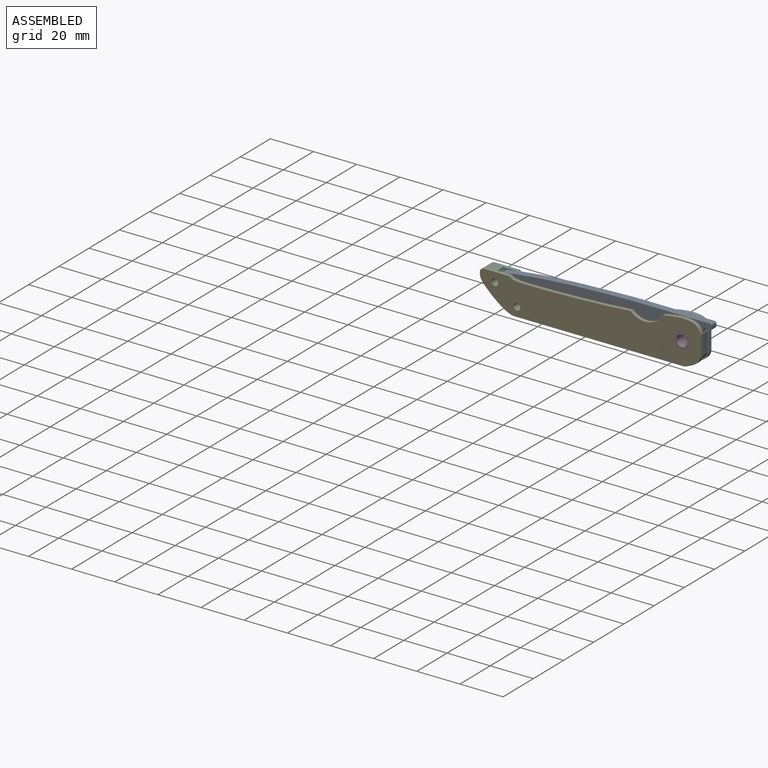
[diagram: assembled view]
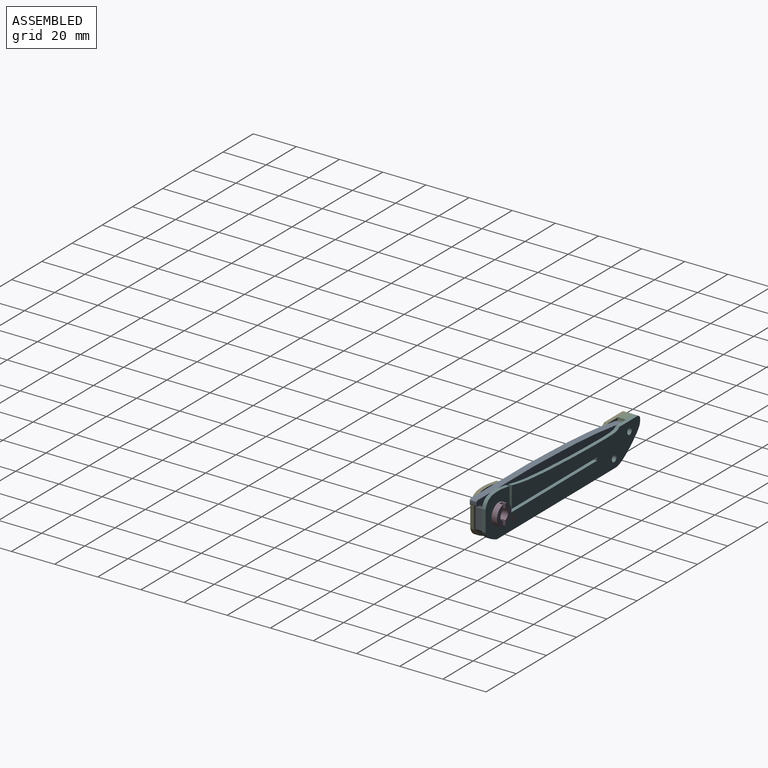
[diagram: assembled view, second angle]
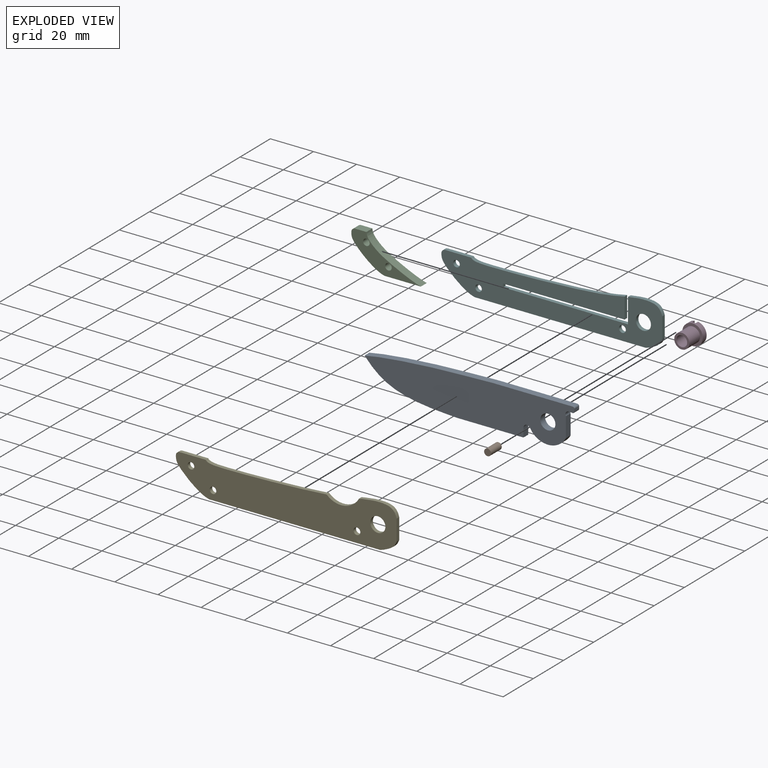
[diagram: exploded view]
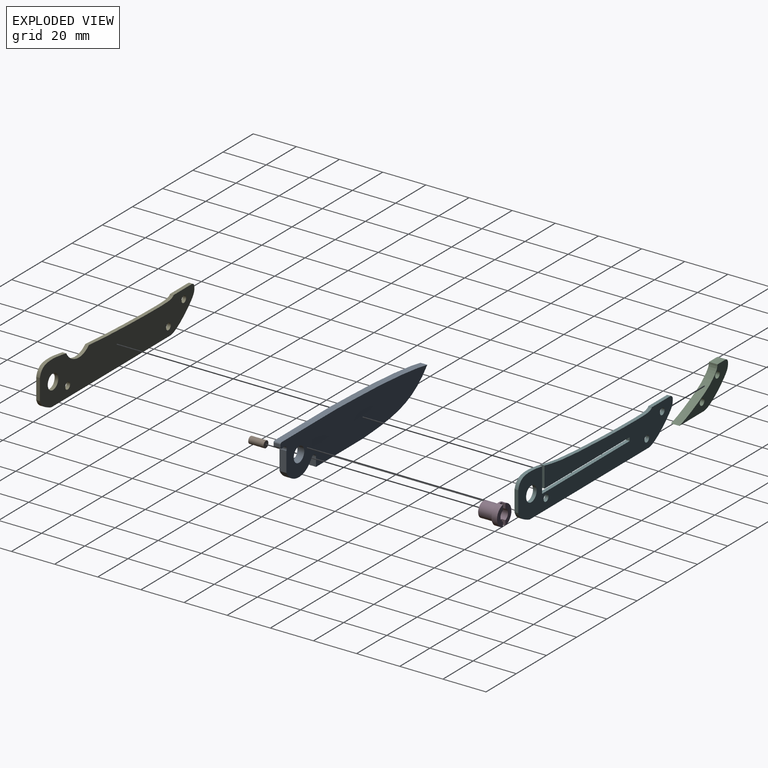
[diagram: exploded view, second angle]
ASSEMBLY  parts=6 mates=6
PART A: 16 faces, bbox 97.2x3.2x19.1 mm
  f0: cylinder r=1.59mm len=3.18mm, axis (0,1,0), area 13.5mm2, adj f1,f12,f14,f15
  f1: cylinder r=9.53mm len=16.65mm, axis (0,1,0), area 64.3mm2, adj f0,f2,f14,f15
  f2: plane 9.25x3.18mm, normal (1,0,0), area 29.4mm2, adj f1,f3,f14,f15
  f3: cylinder r=1.59mm len=3.18mm, axis (0,1,0), area 11mm2, adj f2,f4,f14,f15
  f4: plane 3.18x1.49mm, normal (-0.11,0,-0.99), area 4.8mm2, adj f3,f5,f14,f15
  f5: cylinder r=0.8mm len=3.18mm, axis (0,1,0), area 4.3mm2, adj f4,f6,f14,f15
  f6: plane 3.18x1.12mm, normal (1,0,0), area 3.6mm2, adj f5,f7,f14,f15
  f7: cylinder r=0.8mm len=3.18mm, axis (0,1,0), area 4mm2, adj f6,f8,f14,f15
  f8: plane 36.97x3.18mm, normal (0,0,1), area 117.4mm2, adj f7,f9,f14,f15
  f9: extruded ~59.44x4.41mm, area 189.4mm2, adj f8,f10,f14,f15
  f10: extruded ~42.92x14.64mm, area 149.1mm2, adj f9,f11,f14,f15
  f11: plane 30.73x3.18mm, normal (0,0,-1), area 97.6mm2, adj f10,f12,f14,f15
  f12: plane 4.07x3.18mm, normal (1,0,0), area 12.9mm2, adj f0,f11,f14,f15
  f13: cylinder r=3.49mm len=6.99mm, axis (0,1,0), area 69.7mm2, adj f14,f15
  f14: plane 97.21x19.05mm, normal (0,-1,0), area 1458.5mm2, adj f0,f1,f2,f3,f4,f5,f6,f7
  f15: plane 97.21x19.05mm, normal (0,1,0), area 1458.5mm2, adj f0,f1,f2,f3,f4,f5,f6,f7
PART B: 3 faces, bbox 3.2x7.1x3.2 mm
  f0: cylinder r=1.59mm len=7.11mm, axis (0,1,0), area 70.9mm2, adj f1,f2
  f1: plane 3.18x3.18mm, normal (0,-1,0), area 7.9mm2, adj f0
  f2: plane 3.18x3.18mm, normal (0,1,0), area 7.9mm2, adj f0
PART C: 9 faces, bbox 32.3x3.9x16.1 mm
  f0: plane 16.72x3.94mm, normal (0,0,-1), area 65.8mm2, adj f1,f6,f7,f8
  f1: extruded ~25.26x16.13mm, area 122mm2, adj f0,f2,f7,f8
  f2: plane 5.17x3.94mm, normal (0,0,1), area 20.4mm2, adj f1,f3,f7,f8
  f3: cylinder r=1.81mm len=3.94mm, axis (0,1,0), area 10.9mm2, adj f2,f6,f7,f8
  f4: cylinder r=1.52mm len=3.94mm, axis (0,1,0), area 37.7mm2, adj f7,f8
  f5: cylinder r=1.52mm len=3.94mm, axis (0,1,0), area 37.7mm2, adj f7,f8
  f6: extruded ~15.53x14.39mm, area 87.4mm2, adj f0,f3,f7,f8
  f7: plane 32.32x16.13mm, normal (0,-1,0), area 167.7mm2, adj f0,f1,f2,f3,f4,f5,f6
  f8: plane 32.32x16.13mm, normal (0,1,0), area 167.7mm2, adj f0,f1,f2,f3,f4,f5,f6
PART D: 13 faces, bbox 9.5x9.7x9.5 mm
  f0: cylinder r=2.5mm len=9.65mm, axis (0,1,0), area 146.3mm2, adj f1,f3,f4,f7,f8,f9,f10,f11
  f1: plane 9.39x3.98mm, normal (0,1,0), area 22.2mm2, adj f0,f5,f8,f11
  f2: cylinder r=3.49mm len=7.11mm, axis (0,1,0), area 156.1mm2, adj f3,f6
  f3: plane 6.99x6.99mm, normal (0,-1,0), area 18.7mm2, adj f0,f2
  f4: plane 9.39x3.98mm, normal (0,1,0), area 22.2mm2, adj f0,f5,f7,f10
  f5: cylinder r=4.76mm len=9.53mm, axis (0,1,0), area 70.6mm2, adj f1,f4,f6,f7,f8,f9,f10,f11
  f6: plane 9.53x9.53mm, normal (0,-1,0), area 32.9mm2, adj f2,f5
  f7: plane 2.32x1.7mm, normal (-1,0,0), area 4mm2, adj f0,f4,f5,f9
  f8: plane 2.32x1.7mm, normal (1,0,0), area 4mm2, adj f0,f1,f5,f9
  f9: plane 2.39x1.58mm, normal (0,1,0), area 3.6mm2, adj f0,f5,f7,f8
  f10: plane 2.32x1.7mm, normal (-1,0,0), area 4mm2, adj f0,f4,f5,f12
  f11: plane 2.32x1.7mm, normal (1,0,0), area 4mm2, adj f0,f1,f5,f12
  f12: plane 2.39x1.58mm, normal (0,1,0), area 3.6mm2, adj f0,f5,f10,f11
PART E: 17 faces, bbox 102.4x1.7x20.3 mm
  f0: extruded ~15.84x4.79mm, area 31mm2, adj f1,f13,f15,f16
  f1: plane 1.7x1.58mm, normal (-0.19,0,0.98), area 2.7mm2, adj f0,f2,f15,f16
  f2: extruded ~1.7x0.06mm, area 0.1mm2, adj f1,f3,f15,f16
  f3: cylinder r=9.53mm len=14.98mm, axis (0,1,0), area 29.8mm2, adj f2,f4,f15,f16
  f4: extruded ~56.07x1.93mm, area 96.1mm2, adj f3,f5,f15,f16
  f5: plane 11.98x1.7mm, normal (0,0,1), area 20.4mm2, adj f4,f6,f15,f16
  f6: cylinder r=1.81mm len=1.81mm, axis (0,1,0), area 4.7mm2, adj f5,f7,f15,f16
  f7: extruded ~15.53x14.39mm, area 37.8mm2, adj f6,f8,f15,f16
  f8: plane 79.2x1.7mm, normal (0,0,-1), area 134.8mm2, adj f7,f9,f15,f16
  f9: extruded ~7.59x5.51mm, area 16.6mm2, adj f8,f13,f15,f16
  f10: cylinder r=1.52mm len=3.05mm, axis (0,1,0), area 16.3mm2, adj f15,f16
  f11: cylinder r=3.49mm len=6.99mm, axis (0,1,0), area 37.3mm2, adj f15,f16
  f12: cylinder r=1.59mm len=3.18mm, axis (0,1,0), area 17mm2, adj f15,f16
  f13: plane 9.65x1.7mm, normal (1,0,0), area 16.4mm2, adj f0,f9,f15,f16
  f14: cylinder r=1.52mm len=3.05mm, axis (0,1,0), area 16.3mm2, adj f15,f16
  f15: plane 102.39x20.29mm, normal (0,-1,0), area 1493.2mm2, adj f0,f1,f2,f3,f4,f5,f6,f7
  f16: plane 102.39x20.29mm, normal (0,1,0), area 1493.2mm2, adj f0,f1,f2,f3,f4,f5,f6,f7
PART F: 19 faces, bbox 102.4x1.7x20.3 mm
  f0: plane 9.65x1.7mm, normal (1,0,0), area 16.4mm2, adj f1,f13,f17,f18
  f1: extruded ~71.12x4.18mm, area 122mm2, adj f0,f2,f17,f18
  f2: plane 11.98x1.7mm, normal (0,0,1), area 20.4mm2, adj f1,f3,f17,f18
  f3: cylinder r=1.81mm len=1.81mm, axis (0,1,0), area 4.7mm2, adj f2,f4,f17,f18
  f4: extruded ~15.53x14.39mm, area 37.8mm2, adj f3,f5,f17,f18
  f5: plane 79.2x1.7mm, normal (0,0,-1), area 134.8mm2, adj f4,f6,f17,f18
  f6: extruded ~7.59x5.51mm, area 16.6mm2, adj f5,f7,f17,f18
  f7: plane 9.65x1.7mm, normal (1,0,0), area 16.4mm2, adj f6,f8,f17,f18
  f8: extruded ~15.84x4.79mm, area 31mm2, adj f7,f9,f17,f18
  f9: plane 11.53x1.7mm, normal (-1,0,0), area 19.6mm2, adj f8,f10,f17,f18
  f10: plane 57.94x1.7mm, normal (0,0,1), area 98.6mm2, adj f9,f11,f17,f18
  f11: plane 1.7x1.57mm, normal (1,0,0), area 2.7mm2, adj f10,f13,f17,f18
  f12: cylinder r=1.52mm len=3.05mm, axis (0,1,0), area 16.3mm2, adj f17,f18
  f13: plane 56.36x1.7mm, normal (0,0,-1), area 95.9mm2, adj f0,f11,f17,f18
  f14: cylinder r=3.49mm len=6.99mm, axis (0,1,0), area 37.3mm2, adj f17,f18
  f15: cylinder r=1.59mm len=3.18mm, axis (0,1,0), area 17mm2, adj f17,f18
  f16: cylinder r=1.52mm len=3.05mm, axis (0,1,0), area 16.3mm2, adj f17,f18
  f17: plane 102.39x20.29mm, normal (0,-1,0), area 1423.6mm2, adj f0,f1,f2,f3,f4,f5,f6,f7
  f18: plane 102.39x20.29mm, normal (0,1,0), area 1423.6mm2, adj f0,f1,f2,f3,f4,f5,f6,f7
PLACE A rot(axis=(0,-1,0),0deg) t=(7,-14.92,9.83)mm
PLACE B t=(7,-13.22,9.83)mm
PLACE C t=(7,-14.92,9.83)mm
PLACE D t=(7,-10.68,9.83)mm
PLACE E t=(7,-18.63,9.83)mm
PLACE F t=(7,-13.22,9.83)mm fixed
MATE fastened F.f14 <-> D.f0  axis (0,1,0) through (7,-13.22,9.83)mm
MATE fastened F.f15 <-> B.f0  axis (0,1,0) through (-2.71,-13.22,4.43)mm
MATE revolute A.f1 <-> F.f14  axis (0,1,0) through (7,-14.92,9.83)mm
MATE cylindrical D.f0 <-> A.f1  axis (0,1,0) through (7,-16.78,9.83)mm
MATE fastened C.f5 <-> F.f12  axis (0,1,0) through (-69.42,-14.92,3.73)mm
MATE fastened E.f11 <-> D.f0  axis (0,-1,0) through (7,-20.33,9.83)mm
